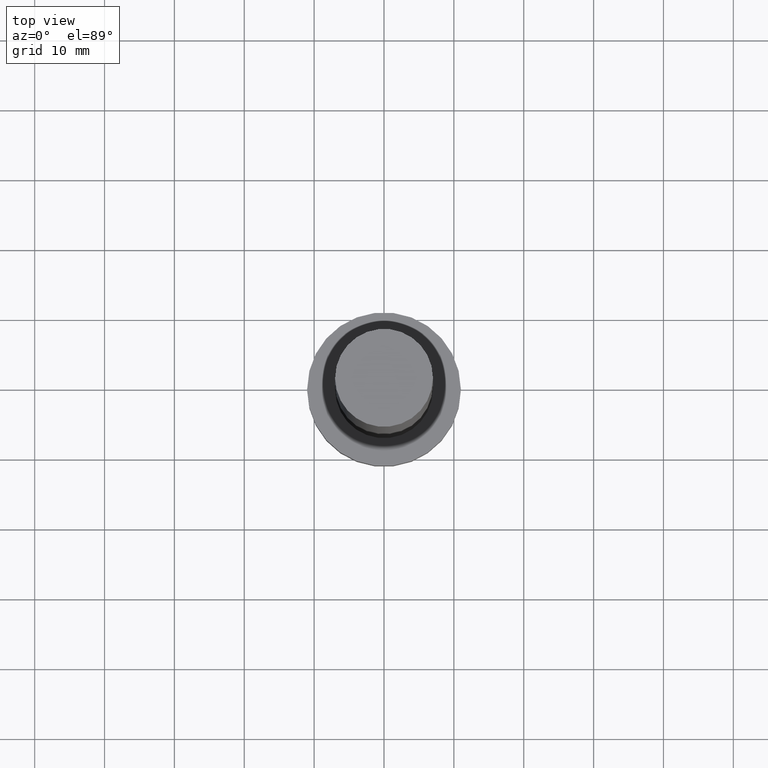
[diagram: clean part render]
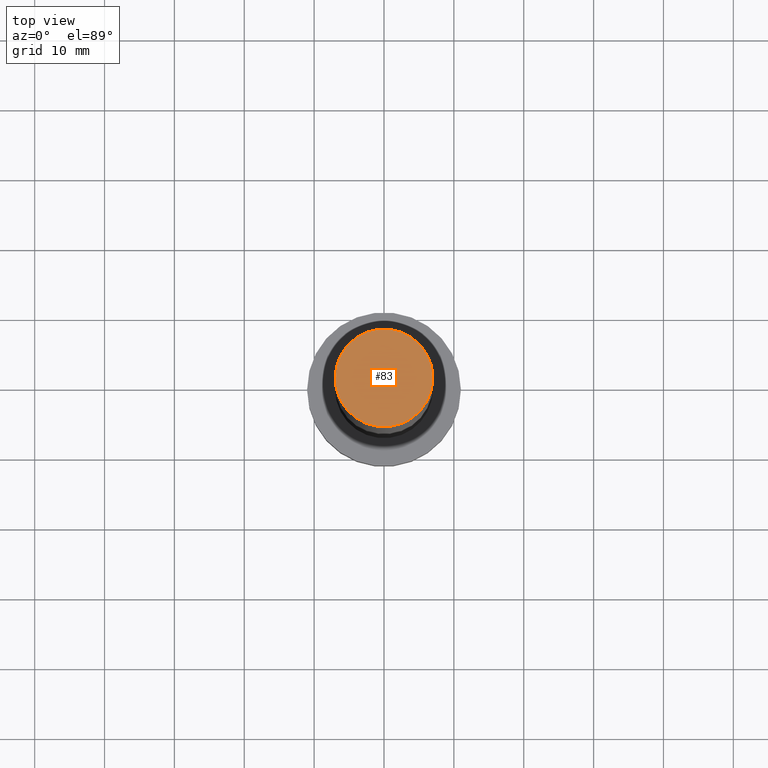
[diagram: same view with one face highlighted and labeled with its STEP entity id]
A machine part, top view. The second image highlights one B-rep face of the part: STEP entity #83.
In plain terms, the highlighted planar face has unit normal (0, 0, 1).
Its self-contained STEP definition (entity closure, byte-faithful):
#13 = EDGE_LOOP ( 'NONE', ( #115, #241 ) ) ;
#35 = DIRECTION ( 'NONE',  ( 1.000000000000000000, 0.000000000000000000, -0.000000000000000000 ) ) ;
#39 = CARTESIAN_POINT ( 'NONE',  ( 7.000000000000000000, 8.572527594031471218E-16, 100.0000000000000000 ) ) ;
#49 = DIRECTION ( 'NONE',  ( 0.000000000000000000, 0.000000000000000000, 1.000000000000000000 ) ) ;
#52 = FACE_OUTER_BOUND ( 'NONE', #13, .T. ) ;
#53 = AXIS2_PLACEMENT_3D ( 'NONE', #173, #49, #35 ) ;
#58 = AXIS2_PLACEMENT_3D ( 'NONE', #229, #128, #205 ) ;
#63 = DIRECTION ( 'NONE',  ( 0.000000000000000000, 0.000000000000000000, 1.000000000000000000 ) ) ;
#77 = DIRECTION ( 'NONE',  ( 1.000000000000000000, 0.000000000000000000, 0.000000000000000000 ) ) ;
#83 = ADVANCED_FACE ( 'NONE', ( #52 ), #130, .T. ) ;
#100 = EDGE_CURVE ( 'NONE', #172, #213, #103, .T. ) ;
#103 = CIRCLE ( 'NONE', #58, 7.000000000000000000 ) ;
#111 = EDGE_CURVE ( 'NONE', #213, #172, #253, .T. ) ;
#115 = ORIENTED_EDGE ( 'NONE', *, *, #100, .T. ) ;
#128 = DIRECTION ( 'NONE',  ( 0.000000000000000000, 0.000000000000000000, 1.000000000000000000 ) ) ;
#130 = PLANE ( 'NONE',  #53 ) ;
#172 = VERTEX_POINT ( 'NONE', #234 ) ;
#173 = CARTESIAN_POINT ( 'NONE',  ( 0.000000000000000000, 0.000000000000000000, 100.0000000000000000 ) ) ;
#205 = DIRECTION ( 'NONE',  ( 1.000000000000000000, 0.000000000000000000, 0.000000000000000000 ) ) ;
#209 = AXIS2_PLACEMENT_3D ( 'NONE', #219, #63, #77 ) ;
#213 = VERTEX_POINT ( 'NONE', #39 ) ;
#219 = CARTESIAN_POINT ( 'NONE',  ( 0.000000000000000000, 0.000000000000000000, 100.0000000000000000 ) ) ;
#229 = CARTESIAN_POINT ( 'NONE',  ( 0.000000000000000000, 0.000000000000000000, 100.0000000000000000 ) ) ;
#234 = CARTESIAN_POINT ( 'NONE',  ( -7.000000000000000000, 0.000000000000000000, 100.0000000000000000 ) ) ;
#241 = ORIENTED_EDGE ( 'NONE', *, *, #111, .T. ) ;
#253 = CIRCLE ( 'NONE', #209, 7.000000000000000000 ) ;